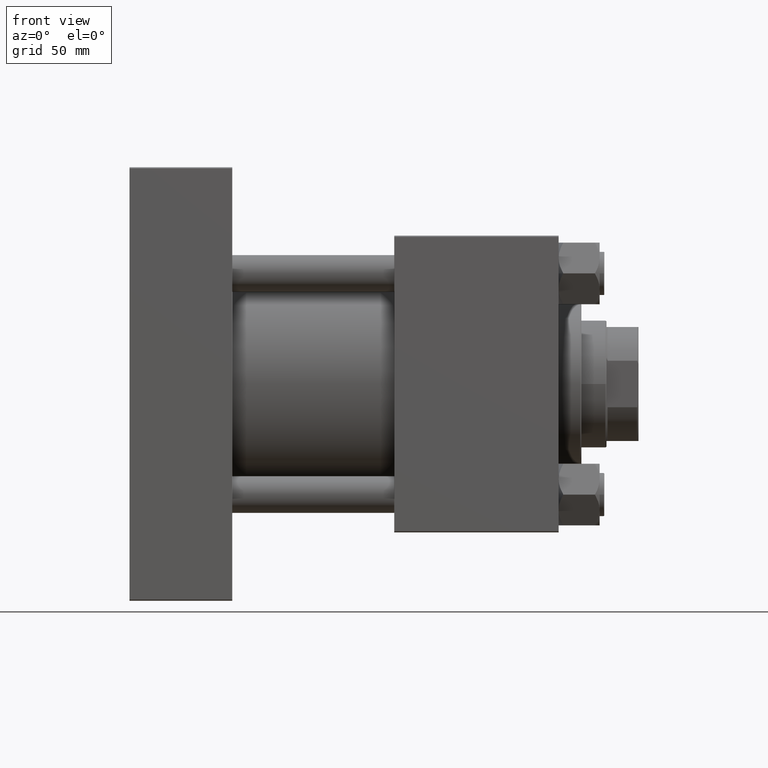
[diagram: clean part render]
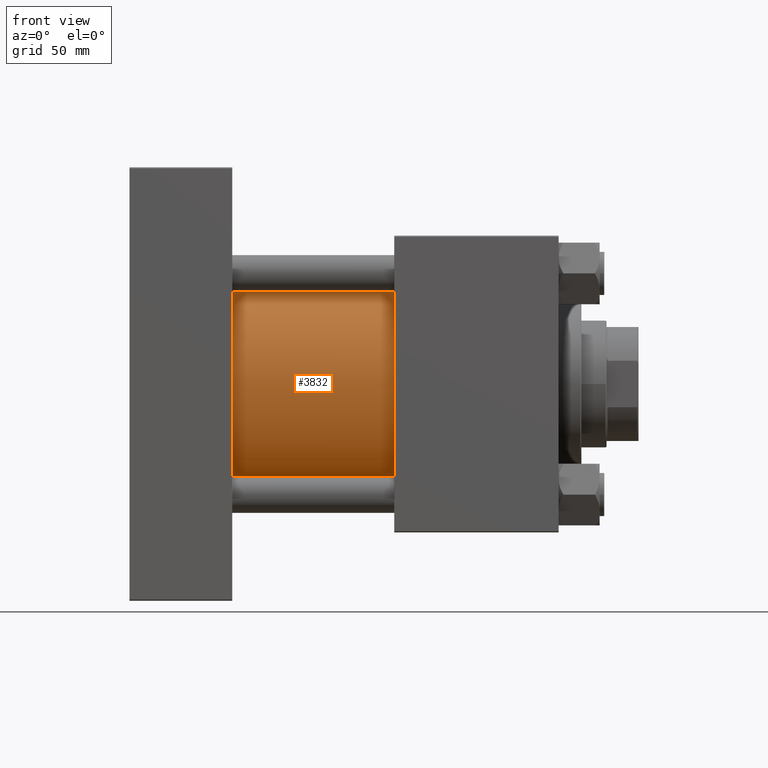
[diagram: same view with one face highlighted and labeled with its STEP entity id]
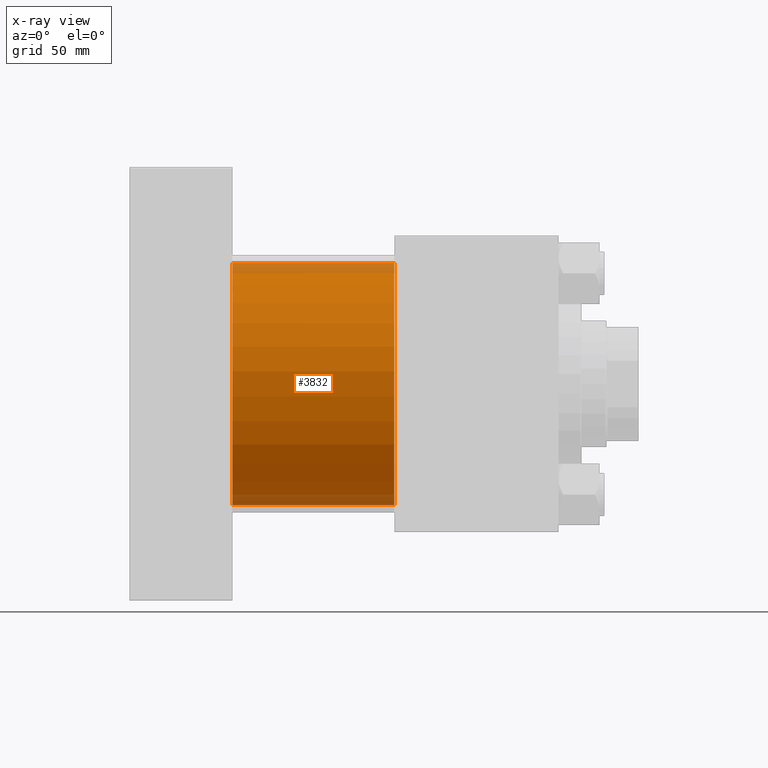
[diagram: x-ray of the same camera — body ghosted, the highlighted face saturated]
A machine part, front view. The second image highlights one B-rep face of the part: STEP entity #3832.
The next image is the same camera in x-ray: the body ghosted, the highlighted face saturated — about 8% of this face is hidden behind the body in this view.
In plain terms, the highlighted cylindrical surface (partial cylindrical patch) has radius 53 mm, axis along (-1, -0, -0).
Its self-contained STEP definition (entity closure, byte-faithful):
#585 = EDGE_CURVE ( 'NONE', #15392, #5928, #4296, .T. ) ;
#1105 = AXIS2_PLACEMENT_3D ( 'NONE', #47082, #15663, #47326 ) ;
#1998 = ORIENTED_EDGE ( 'NONE', *, *, #21958, .T. ) ;
#3832 = ADVANCED_FACE ( 'NONE', ( #12322 ), #8008, .T. ) ;
#4296 = LINE ( 'NONE', #42375, #21404 ) ;
#4559 = CIRCLE ( 'NONE', #40428, 53.00000000000000711 ) ;
#5765 = VERTEX_POINT ( 'NONE', #34592 ) ;
#5928 = VERTEX_POINT ( 'NONE', #14108 ) ;
#7079 = ORIENTED_EDGE ( 'NONE', *, *, #47535, .F. ) ;
#8008 = CYLINDRICAL_SURFACE ( 'NONE', #1105, 53.00000000000000711 ) ;
#12322 = FACE_OUTER_BOUND ( 'NONE', #39415, .T. ) ;
#14108 = CARTESIAN_POINT ( 'NONE',  ( 45.00000000000000000, 3.888542821515762466E-15, -53.00000000000000711 ) ) ;
#15392 = VERTEX_POINT ( 'NONE', #19593 ) ;
#15635 = CARTESIAN_POINT ( 'NONE',  ( 45.00000000000000000, -2.602085213965210642E-15, 0.000000000000000000 ) ) ;
#15663 = DIRECTION ( 'NONE',  ( -1.000000000000000000, -0.000000000000000000, -0.000000000000000000 ) ) ;
#18352 = CIRCLE ( 'NONE', #35462, 53.00000000000000711 ) ;
#18914 = CARTESIAN_POINT ( 'NONE',  ( 45.00000000000000000, -2.602085213965210642E-15, 53.00000000000000711 ) ) ;
#19580 = LINE ( 'NONE', #23154, #25412 ) ;
#19593 = CARTESIAN_POINT ( 'NONE',  ( 115.9999999999999858, 3.888542821515762466E-15, -53.00000000000000711 ) ) ;
#20479 = DIRECTION ( 'NONE',  ( 1.000000000000000000, -0.000000000000000000, 0.000000000000000000 ) ) ;
#21083 = DIRECTION ( 'NONE',  ( 0.000000000000000000, 0.000000000000000000, -1.000000000000000000 ) ) ;
#21404 = VECTOR ( 'NONE', #31377, 1000.000000000000000 ) ;
#21958 = EDGE_CURVE ( 'NONE', #47370, #5928, #4559, .T. ) ;
#23154 = CARTESIAN_POINT ( 'NONE',  ( 115.9999999999999858, -2.602085213965210642E-15, 53.00000000000000711 ) ) ;
#25412 = VECTOR ( 'NONE', #42806, 1000.000000000000000 ) ;
#25920 = ORIENTED_EDGE ( 'NONE', *, *, #43894, .T. ) ;
#31377 = DIRECTION ( 'NONE',  ( -1.000000000000000000, -0.000000000000000000, -0.000000000000000000 ) ) ;
#31802 = CARTESIAN_POINT ( 'NONE',  ( 115.9999999999999858, -2.602085213965210642E-15, 0.000000000000000000 ) ) ;
#34592 = CARTESIAN_POINT ( 'NONE',  ( 115.9999999999999858, -2.602085213965210642E-15, 53.00000000000000711 ) ) ;
#35462 = AXIS2_PLACEMENT_3D ( 'NONE', #31802, #36127, #21083 ) ;
#36127 = DIRECTION ( 'NONE',  ( 1.000000000000000000, 0.000000000000000000, 0.000000000000000000 ) ) ;
#39120 = DIRECTION ( 'NONE',  ( 0.000000000000000000, 0.000000000000000000, 1.000000000000000000 ) ) ;
#39415 = EDGE_LOOP ( 'NONE', ( #40383, #7079, #25920, #1998 ) ) ;
#40383 = ORIENTED_EDGE ( 'NONE', *, *, #585, .F. ) ;
#40428 = AXIS2_PLACEMENT_3D ( 'NONE', #15635, #20479, #39120 ) ;
#42375 = CARTESIAN_POINT ( 'NONE',  ( 115.9999999999999858, 3.888542821515762466E-15, -53.00000000000000711 ) ) ;
#42806 = DIRECTION ( 'NONE',  ( -1.000000000000000000, -0.000000000000000000, -0.000000000000000000 ) ) ;
#43894 = EDGE_CURVE ( 'NONE', #5765, #47370, #19580, .T. ) ;
#47082 = CARTESIAN_POINT ( 'NONE',  ( 115.9999999999999858, -2.602085213965210642E-15, 0.000000000000000000 ) ) ;
#47326 = DIRECTION ( 'NONE',  ( 0.000000000000000000, 0.000000000000000000, 1.000000000000000000 ) ) ;
#47370 = VERTEX_POINT ( 'NONE', #18914 ) ;
#47535 = EDGE_CURVE ( 'NONE', #5765, #15392, #18352, .T. ) ;